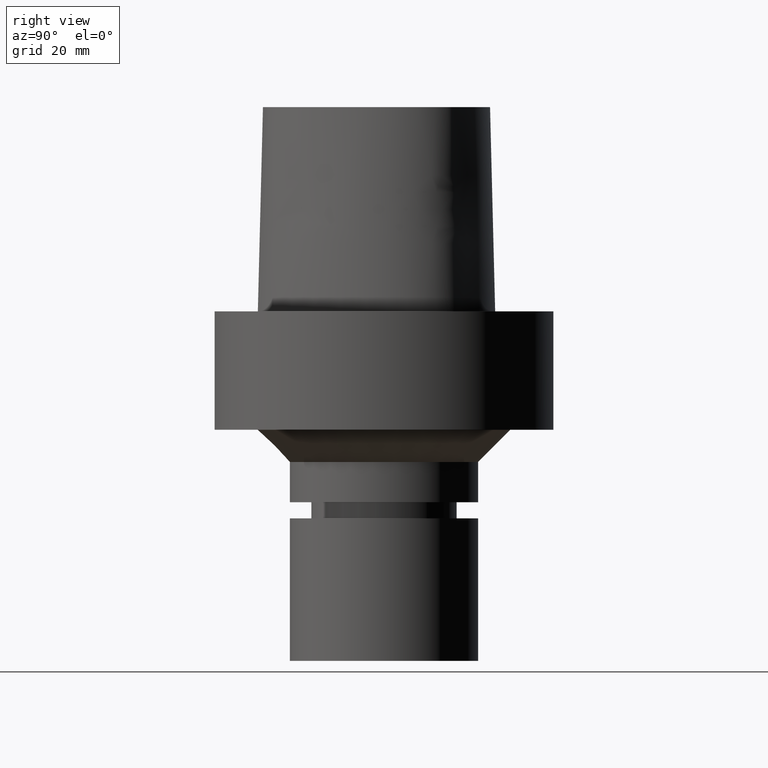
[diagram: clean part render]
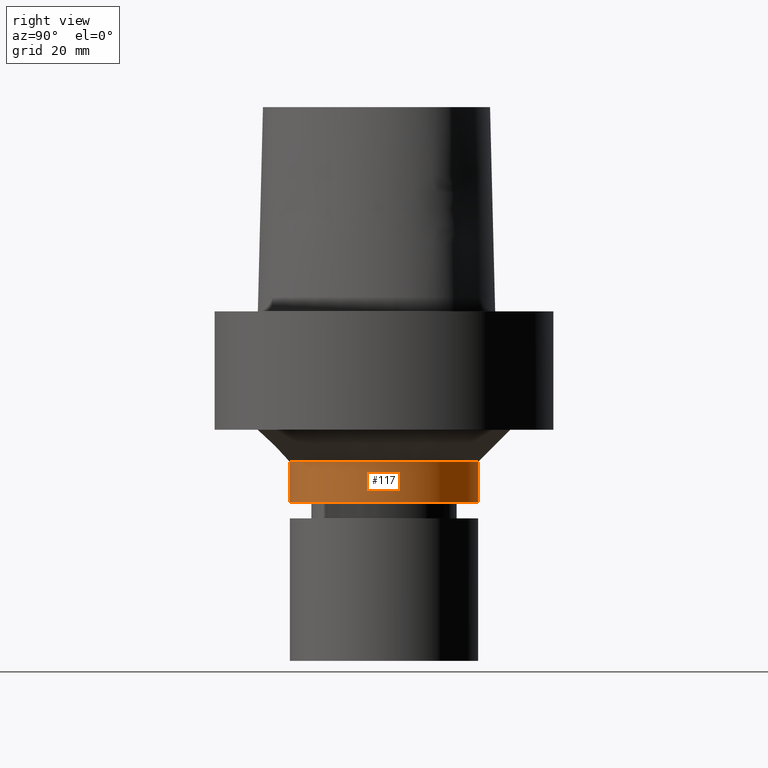
[diagram: same view with one face highlighted and labeled with its STEP entity id]
A machine part, right view. The second image highlights one B-rep face of the part: STEP entity #117.
In plain terms, the highlighted cylindrical surface (bore or boss wall) has radius 17.5 mm, axis along (0, 0, -1).
Its self-contained STEP definition (entity closure, byte-faithful):
#79=EDGE_CURVE('Unnamed[1]',#201,#201,#202,.T.);
#117=ADVANCED_FACE('Unnamed[1]',(#260,#261),#262,.T.);
#145=EDGE_CURVE('Unnamed[1]',#300,#300,#301,.T.);
#201=VERTEX_POINT('',#361);
#202=CIRCLE('',#362,17.4999999999999);
#260=FACE_BOUND('',#481,.T.);
#261=FACE_BOUND('',#482,.T.);
#262=CYLINDRICAL_SURFACE('',#483,17.4999999999999);
#300=VERTEX_POINT('',#531);
#301=CIRCLE('',#532,17.4999999999999);
#361=CARTESIAN_POINT('',(2.17374806848654E-015,17.4999999999999,-35.4999999999998));
#362=AXIS2_PLACEMENT_3D('',#750,#751,#752);
#481=EDGE_LOOP('',(#808));
#482=EDGE_LOOP('',(#809));
#483=AXIS2_PLACEMENT_3D('',#810,#811,#812);
#531=CARTESIAN_POINT('',(1.71450551880629E-015,17.4999999999999,-28.0));
#532=AXIS2_PLACEMENT_3D('',#849,#850,#851);
#750=CARTESIAN_POINT('',(2.17374806848654E-015,4.34749613697308E-015,-35.4999999999998));
#751=DIRECTION('',(6.12323399573677E-017,1.22464679914735E-016,-1.0));
#752=DIRECTION('',(-1.23259516440783E-032,1.0,1.22464679914735E-016));
#808=ORIENTED_EDGE('',*,*,#79,.F.);
#809=ORIENTED_EDGE('',*,*,#145,.T.);
#810=CARTESIAN_POINT('',(1.94412679364642E-015,3.88825358729283E-015,-31.7499999999999));
#811=DIRECTION('',(6.12323399573677E-017,1.22464679914735E-016,-1.0));
#812=DIRECTION('',(-1.23259516440783E-032,1.0,1.22464679914735E-016));
#849=CARTESIAN_POINT('',(1.71450551880629E-015,3.42901103761259E-015,-28.0));
#850=DIRECTION('',(6.12323399573677E-017,1.22464679914735E-016,-1.0));
#851=DIRECTION('',(-1.23259516440783E-032,1.0,1.22464679914735E-016));